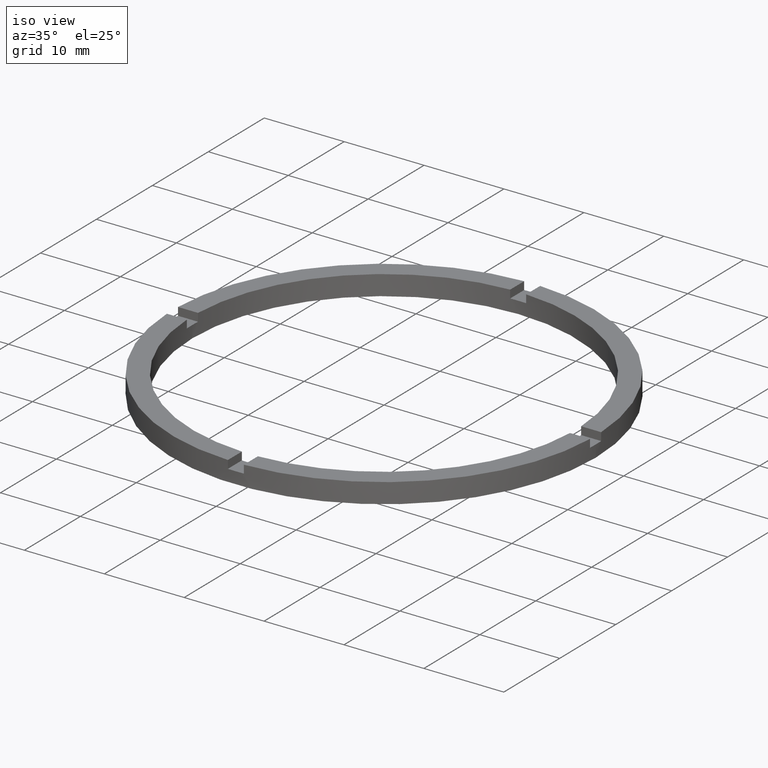
[diagram: clean part render]
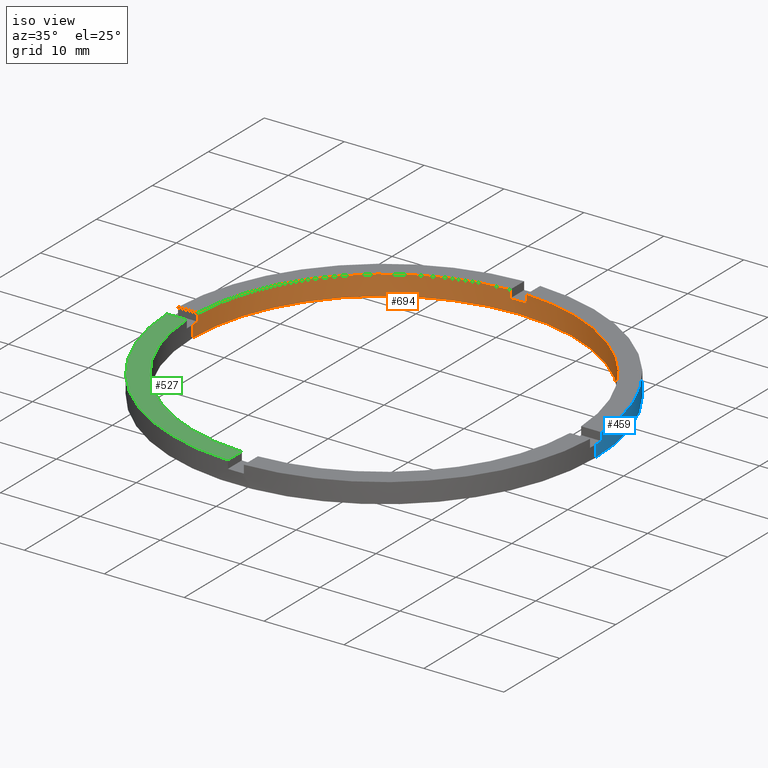
[diagram: same view with three faces highlighted in distinct colors, each labeled with its STEP entity id]
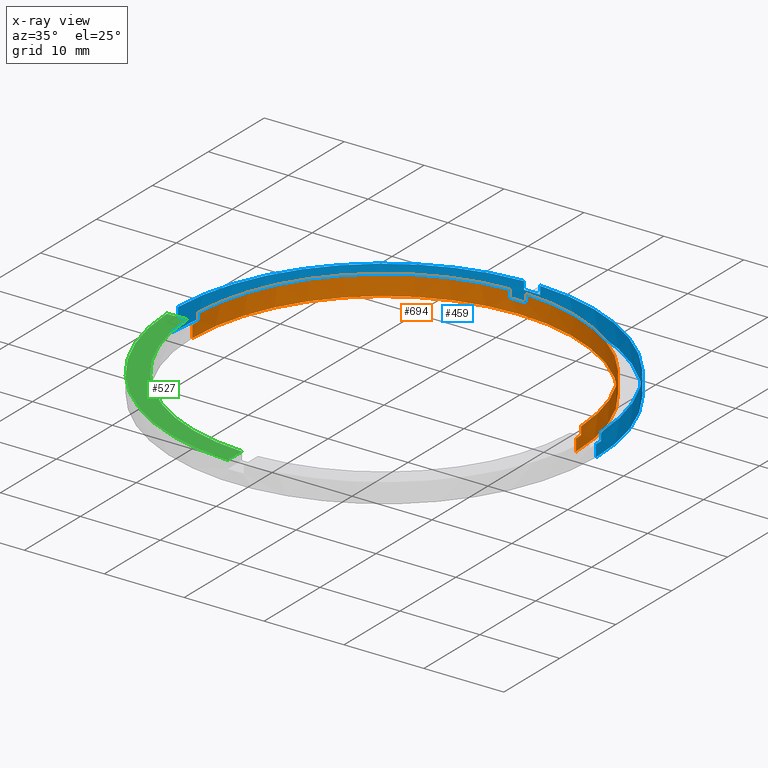
[diagram: x-ray of the same camera — body ghosted, the three highlighted faces saturated]
A machine part, iso view with three faces highlighted in distinct colors.
The next image is the same camera in x-ray (body ghosted, the three faces saturated) — at least one of them is partly hidden behind the body in this view.
Their STEP definitions:

[orange] entity #694 — the highlighted cylindrical surface (partial cylindrical patch) has radius 24 mm, axis along (-0, -0, -1).
#4 = CARTESIAN_POINT ( 'NONE',  ( 0.000000000000000000, 0.000000000000000000, 2.500000000000000000 ) ) ;
#12 = EDGE_CURVE ( 'NONE', #771, #374, #501, .T. ) ;
#13 = CARTESIAN_POINT ( 'NONE',  ( -24.00000000000000355, 0.000000000000000000, 1.500000000000000000 ) ) ;
#21 = CARTESIAN_POINT ( 'NONE',  ( -23.97915761656360445, 0.9999999999999740208, 1.500000000000000000 ) ) ;
#30 = DIRECTION ( 'NONE',  ( 0.000000000000000000, -0.000000000000000000, 1.000000000000000000 ) ) ;
#47 = ORIENTED_EDGE ( 'NONE', *, *, #536, .T. ) ;
#49 = ORIENTED_EDGE ( 'NONE', *, *, #751, .T. ) ;
#57 = EDGE_CURVE ( 'NONE', #250, #258, #764, .T. ) ;
#70 = CARTESIAN_POINT ( 'NONE',  ( 0.000000000000000000, 0.000000000000000000, 1.500000000000000000 ) ) ;
#99 = ORIENTED_EDGE ( 'NONE', *, *, #306, .T. ) ;
#110 = CARTESIAN_POINT ( 'NONE',  ( -24.00000000000000355, 0.000000000000000000, 2.500000000000000000 ) ) ;
#119 = ORIENTED_EDGE ( 'NONE', *, *, #173, .F. ) ;
#128 = VERTEX_POINT ( 'NONE', #638 ) ;
#132 = ORIENTED_EDGE ( 'NONE', *, *, #521, .F. ) ;
#142 = CARTESIAN_POINT ( 'NONE',  ( 0.000000000000000000, 0.000000000000000000, 0.000000000000000000 ) ) ;
#152 = EDGE_CURVE ( 'NONE', #250, #358, #200, .T. ) ;
#156 = EDGE_CURVE ( 'NONE', #370, #591, #457, .T. ) ;
#173 = EDGE_CURVE ( 'NONE', #771, #373, #704, .T. ) ;
#189 = DIRECTION ( 'NONE',  ( -1.000000000000000000, 0.000000000000000000, 0.000000000000000000 ) ) ;
#190 = LINE ( 'NONE', #205, #192 ) ;
#192 = VECTOR ( 'NONE', #262, 1000.000000000000000 ) ;
#197 = CARTESIAN_POINT ( 'NONE',  ( 0.000000000000000000, 0.000000000000000000, 2.500000000000000000 ) ) ;
#200 = CIRCLE ( 'NONE', #444, 24.00000000000000355 ) ;
#205 = CARTESIAN_POINT ( 'NONE',  ( 23.97915761656361155, 0.9999999999998427924, 2.500000000000000000 ) ) ;
#206 = DIRECTION ( 'NONE',  ( -0.000000000000000000, -0.000000000000000000, -1.000000000000000000 ) ) ;
#225 = AXIS2_PLACEMENT_3D ( 'NONE', #4, #509, #302 ) ;
#235 = EDGE_CURVE ( 'NONE', #369, #373, #695, .T. ) ;
#247 = VECTOR ( 'NONE', #206, 1000.000000000000000 ) ;
#250 = VERTEX_POINT ( 'NONE', #21 ) ;
#258 = VERTEX_POINT ( 'NONE', #397 ) ;
#262 = DIRECTION ( 'NONE',  ( -0.000000000000000000, -0.000000000000000000, -1.000000000000000000 ) ) ;
#266 = DIRECTION ( 'NONE',  ( 0.000000000000000000, 0.000000000000000000, 1.000000000000000000 ) ) ;
#267 = CARTESIAN_POINT ( 'NONE',  ( -1.000000000000026201, 23.97915761656360445, 2.500000000000000000 ) ) ;
#268 = EDGE_CURVE ( 'NONE', #369, #128, #190, .T. ) ;
#269 = CARTESIAN_POINT ( 'NONE',  ( 24.00000000000000355, 2.939152317953648289E-15, 2.500000000000000000 ) ) ;
#281 = AXIS2_PLACEMENT_3D ( 'NONE', #414, #474, #710 ) ;
#297 = DIRECTION ( 'NONE',  ( 0.000000000000000000, 0.000000000000000000, 1.000000000000000000 ) ) ;
#300 = CARTESIAN_POINT ( 'NONE',  ( 0.000000000000000000, 0.000000000000000000, 1.500000000000000000 ) ) ;
#301 = CARTESIAN_POINT ( 'NONE',  ( -1.000000000000026201, 23.97915761656360445, 1.500000000000000000 ) ) ;
#302 = DIRECTION ( 'NONE',  ( 1.000000000000000000, 0.000000000000000000, 0.000000000000000000 ) ) ;
#306 = EDGE_CURVE ( 'NONE', #370, #128, #720, .T. ) ;
#358 = VERTEX_POINT ( 'NONE', #13 ) ;
#362 = ORIENTED_EDGE ( 'NONE', *, *, #235, .T. ) ;
#369 = VERTEX_POINT ( 'NONE', #429 ) ;
#370 = VERTEX_POINT ( 'NONE', #508 ) ;
#373 = VERTEX_POINT ( 'NONE', #391 ) ;
#374 = VERTEX_POINT ( 'NONE', #301 ) ;
#380 = ORIENTED_EDGE ( 'NONE', *, *, #57, .F. ) ;
#381 = DIRECTION ( 'NONE',  ( 1.000000000000000000, 0.000000000000000000, 0.000000000000000000 ) ) ;
#389 = DIRECTION ( 'NONE',  ( 0.000000000000000000, -0.000000000000000000, 1.000000000000000000 ) ) ;
#391 = CARTESIAN_POINT ( 'NONE',  ( 0.9999999999999737987, 23.97915761656360445, 2.500000000000000000 ) ) ;
#394 = DIRECTION ( 'NONE',  ( 1.000000000000000000, 0.000000000000000000, 0.000000000000000000 ) ) ;
#397 = CARTESIAN_POINT ( 'NONE',  ( -23.97915761656360445, 0.9999999999999740208, 2.500000000000000000 ) ) ;
#406 = EDGE_CURVE ( 'NONE', #591, #588, #696, .T. ) ;
#414 = CARTESIAN_POINT ( 'NONE',  ( 0.000000000000000000, 0.000000000000000000, 2.500000000000000000 ) ) ;
#415 = AXIS2_PLACEMENT_3D ( 'NONE', #142, #297, #381 ) ;
#421 = DIRECTION ( 'NONE',  ( -0.000000000000000000, -0.000000000000000000, -1.000000000000000000 ) ) ;
#429 = CARTESIAN_POINT ( 'NONE',  ( 23.97915761656361155, 0.9999999999998427924, 2.500000000000000000 ) ) ;
#433 = CARTESIAN_POINT ( 'NONE',  ( -24.00000000000000355, 0.000000000000000000, 0.000000000000000000 ) ) ;
#440 = DIRECTION ( 'NONE',  ( 0.000000000000000000, 0.000000000000000000, 1.000000000000000000 ) ) ;
#444 = AXIS2_PLACEMENT_3D ( 'NONE', #70, #266, #394 ) ;
#457 = LINE ( 'NONE', #269, #703 ) ;
#465 = VECTOR ( 'NONE', #533, 1000.000000000000000 ) ;
#471 = CARTESIAN_POINT ( 'NONE',  ( 0.9999999999999737987, 23.97915761656360445, 2.500000000000000000 ) ) ;
#472 = VECTOR ( 'NONE', #563, 1000.000000000000000 ) ;
#474 = DIRECTION ( 'NONE',  ( 0.000000000000000000, 0.000000000000000000, 1.000000000000000000 ) ) ;
#493 = FACE_OUTER_BOUND ( 'NONE', #641, .T. ) ;
#494 = CARTESIAN_POINT ( 'NONE',  ( -23.97915761656360445, 0.9999999999999740208, 2.500000000000000000 ) ) ;
#501 = CIRCLE ( 'NONE', #765, 24.00000000000000355 ) ;
#508 = CARTESIAN_POINT ( 'NONE',  ( 24.00000000000000355, 2.939152317953648289E-15, 1.500000000000000000 ) ) ;
#509 = DIRECTION ( 'NONE',  ( 0.000000000000000000, 0.000000000000000000, 1.000000000000000000 ) ) ;
#512 = CARTESIAN_POINT ( 'NONE',  ( 24.00000000000000355, 2.939152317953648289E-15, 0.000000000000000000 ) ) ;
#521 = EDGE_CURVE ( 'NONE', #574, #374, #744, .T. ) ;
#525 = CARTESIAN_POINT ( 'NONE',  ( 0.000000000000000000, 0.000000000000000000, 1.500000000000000000 ) ) ;
#533 = DIRECTION ( 'NONE',  ( 0.000000000000000000, 0.000000000000000000, 1.000000000000000000 ) ) ;
#536 = EDGE_CURVE ( 'NONE', #358, #588, #755, .T. ) ;
#551 = DIRECTION ( 'NONE',  ( 1.000000000000000000, 0.000000000000000000, 0.000000000000000000 ) ) ;
#554 = CARTESIAN_POINT ( 'NONE',  ( 0.9999999999999737987, 23.97915761656360445, 1.500000000000000000 ) ) ;
#563 = DIRECTION ( 'NONE',  ( -0.000000000000000000, -0.000000000000000000, -1.000000000000000000 ) ) ;
#574 = VERTEX_POINT ( 'NONE', #267 ) ;
#578 = AXIS2_PLACEMENT_3D ( 'NONE', #525, #30, #763 ) ;
#588 = VERTEX_POINT ( 'NONE', #433 ) ;
#591 = VERTEX_POINT ( 'NONE', #512 ) ;
#594 = ORIENTED_EDGE ( 'NONE', *, *, #268, .F. ) ;
#613 = ORIENTED_EDGE ( 'NONE', *, *, #152, .T. ) ;
#624 = ORIENTED_EDGE ( 'NONE', *, *, #406, .F. ) ;
#638 = CARTESIAN_POINT ( 'NONE',  ( 23.97915761656361155, 0.9999999999998427924, 1.500000000000000000 ) ) ;
#641 = EDGE_LOOP ( 'NONE', ( #650, #99, #594, #362, #119, #643, #132, #49, #380, #613, #47, #624 ) ) ;
#643 = ORIENTED_EDGE ( 'NONE', *, *, #12, .T. ) ;
#650 = ORIENTED_EDGE ( 'NONE', *, *, #156, .F. ) ;
#655 = DIRECTION ( 'NONE',  ( -0.000000000000000000, -0.000000000000000000, -1.000000000000000000 ) ) ;
#661 = CARTESIAN_POINT ( 'NONE',  ( -1.000000000000026201, 23.97915761656360445, 2.500000000000000000 ) ) ;
#675 = AXIS2_PLACEMENT_3D ( 'NONE', #197, #421, #189 ) ;
#694 = ADVANCED_FACE ( 'NONE', ( #493 ), #754, .F. ) ;
#695 = CIRCLE ( 'NONE', #281, 24.00000000000000355 ) ;
#696 = CIRCLE ( 'NONE', #415, 24.00000000000000355 ) ;
#703 = VECTOR ( 'NONE', #655, 1000.000000000000000 ) ;
#704 = LINE ( 'NONE', #471, #465 ) ;
#710 = DIRECTION ( 'NONE',  ( 1.000000000000000000, 0.000000000000000000, 0.000000000000000000 ) ) ;
#716 = VECTOR ( 'NONE', #440, 1000.000000000000000 ) ;
#720 = CIRCLE ( 'NONE', #578, 24.00000000000000355 ) ;
#730 = CIRCLE ( 'NONE', #225, 24.00000000000000355 ) ;
#744 = LINE ( 'NONE', #661, #472 ) ;
#751 = EDGE_CURVE ( 'NONE', #574, #258, #730, .T. ) ;
#754 = CYLINDRICAL_SURFACE ( 'NONE', #675, 24.00000000000000355 ) ;
#755 = LINE ( 'NONE', #110, #247 ) ;
#763 = DIRECTION ( 'NONE',  ( 1.000000000000000000, 0.000000000000000000, 0.000000000000000000 ) ) ;
#764 = LINE ( 'NONE', #494, #716 ) ;
#765 = AXIS2_PLACEMENT_3D ( 'NONE', #300, #389, #551 ) ;
#771 = VERTEX_POINT ( 'NONE', #554 ) ;

[blue] entity #459 — the highlighted cylindrical surface (partial cylindrical patch) has radius 26.5 mm, axis along (-0, -0, -1).
#10 = EDGE_CURVE ( 'NONE', #644, #315, #759, .T. ) ;
#18 = CARTESIAN_POINT ( 'NONE',  ( 26.48112535373072873, 0.9999999999998427924, 1.500000000000000000 ) ) ;
#22 = DIRECTION ( 'NONE',  ( 0.000000000000000000, -0.000000000000000000, 1.000000000000000000 ) ) ;
#33 = EDGE_CURVE ( 'NONE', #766, #254, #251, .T. ) ;
#36 = ORIENTED_EDGE ( 'NONE', *, *, #174, .T. ) ;
#37 = ORIENTED_EDGE ( 'NONE', *, *, #427, .T. ) ;
#52 = CARTESIAN_POINT ( 'NONE',  ( 0.000000000000000000, 0.000000000000000000, 1.500000000000000000 ) ) ;
#54 = ORIENTED_EDGE ( 'NONE', *, *, #10, .F. ) ;
#90 = CARTESIAN_POINT ( 'NONE',  ( 26.48112535373072873, 0.9999999999998427924, 2.500000000000000000 ) ) ;
#95 = DIRECTION ( 'NONE',  ( 0.000000000000000000, 0.000000000000000000, 1.000000000000000000 ) ) ;
#103 = VERTEX_POINT ( 'NONE', #18 ) ;
#112 = ORIENTED_EDGE ( 'NONE', *, *, #757, .F. ) ;
#113 = CARTESIAN_POINT ( 'NONE',  ( -26.50000000000000355, 0.000000000000000000, 1.500000000000000000 ) ) ;
#115 = ORIENTED_EDGE ( 'NONE', *, *, #718, .T. ) ;
#129 = VERTEX_POINT ( 'NONE', #506 ) ;
#139 = DIRECTION ( 'NONE',  ( 1.000000000000000000, 0.000000000000000000, 0.000000000000000000 ) ) ;
#141 = AXIS2_PLACEMENT_3D ( 'NONE', #569, #699, #344 ) ;
#145 = DIRECTION ( 'NONE',  ( 0.000000000000000000, -0.000000000000000000, 1.000000000000000000 ) ) ;
#150 = EDGE_CURVE ( 'NONE', #342, #103, #441, .T. ) ;
#153 = CARTESIAN_POINT ( 'NONE',  ( -26.50000000000000355, 0.000000000000000000, 2.500000000000000000 ) ) ;
#155 = DIRECTION ( 'NONE',  ( -0.000000000000000000, -0.000000000000000000, -1.000000000000000000 ) ) ;
#164 = CARTESIAN_POINT ( 'NONE',  ( 0.9999999999999737987, 26.48112535373072518, 2.500000000000000000 ) ) ;
#166 = CARTESIAN_POINT ( 'NONE',  ( 26.48112535373072873, 0.9999999999998427924, 2.500000000000000000 ) ) ;
#172 = VECTOR ( 'NONE', #95, 1000.000000000000000 ) ;
#174 = EDGE_CURVE ( 'NONE', #337, #347, #187, .T. ) ;
#187 = CIRCLE ( 'NONE', #141, 26.50000000000000355 ) ;
#188 = LINE ( 'NONE', #561, #453 ) ;
#202 = CARTESIAN_POINT ( 'NONE',  ( 0.000000000000000000, 0.000000000000000000, 1.500000000000000000 ) ) ;
#211 = VECTOR ( 'NONE', #259, 1000.000000000000000 ) ;
#216 = DIRECTION ( 'NONE',  ( 1.000000000000000000, 0.000000000000000000, 0.000000000000000000 ) ) ;
#227 = LINE ( 'NONE', #431, #211 ) ;
#229 = ORIENTED_EDGE ( 'NONE', *, *, #535, .T. ) ;
#251 = CIRCLE ( 'NONE', #293, 26.50000000000000355 ) ;
#254 = VERTEX_POINT ( 'NONE', #642 ) ;
#259 = DIRECTION ( 'NONE',  ( -0.000000000000000000, -0.000000000000000000, -1.000000000000000000 ) ) ;
#272 = DIRECTION ( 'NONE',  ( 0.000000000000000000, 0.000000000000000000, 1.000000000000000000 ) ) ;
#273 = DIRECTION ( 'NONE',  ( 1.000000000000000000, 0.000000000000000000, 0.000000000000000000 ) ) ;
#277 = CARTESIAN_POINT ( 'NONE',  ( -1.000000000000026201, 26.48112535373072163, 1.500000000000000000 ) ) ;
#293 = AXIS2_PLACEMENT_3D ( 'NONE', #422, #399, #649 ) ;
#308 = ORIENTED_EDGE ( 'NONE', *, *, #612, .F. ) ;
#311 = DIRECTION ( 'NONE',  ( 0.000000000000000000, 0.000000000000000000, 1.000000000000000000 ) ) ;
#314 = CARTESIAN_POINT ( 'NONE',  ( 0.000000000000000000, 0.000000000000000000, 2.500000000000000000 ) ) ;
#315 = VERTEX_POINT ( 'NONE', #113 ) ;
#333 = AXIS2_PLACEMENT_3D ( 'NONE', #314, #155, #400 ) ;
#337 = VERTEX_POINT ( 'NONE', #408 ) ;
#342 = VERTEX_POINT ( 'NONE', #548 ) ;
#344 = DIRECTION ( 'NONE',  ( 1.000000000000000000, 0.000000000000000000, 0.000000000000000000 ) ) ;
#347 = VERTEX_POINT ( 'NONE', #740 ) ;
#371 = ORIENTED_EDGE ( 'NONE', *, *, #33, .F. ) ;
#399 = DIRECTION ( 'NONE',  ( 0.000000000000000000, 0.000000000000000000, 1.000000000000000000 ) ) ;
#400 = DIRECTION ( 'NONE',  ( -1.000000000000000000, 0.000000000000000000, 0.000000000000000000 ) ) ;
#408 = CARTESIAN_POINT ( 'NONE',  ( 26.50000000000000355, 3.245314017740486554E-15, 0.000000000000000000 ) ) ;
#422 = CARTESIAN_POINT ( 'NONE',  ( 0.000000000000000000, 0.000000000000000000, 2.500000000000000000 ) ) ;
#427 = EDGE_CURVE ( 'NONE', #644, #254, #438, .T. ) ;
#431 = CARTESIAN_POINT ( 'NONE',  ( 26.50000000000000355, 3.245314017740486554E-15, 2.500000000000000000 ) ) ;
#438 = LINE ( 'NONE', #454, #172 ) ;
#439 = CARTESIAN_POINT ( 'NONE',  ( -1.000000000000026201, 26.48112535373072163, 2.500000000000000000 ) ) ;
#441 = CIRCLE ( 'NONE', #670, 26.50000000000000355 ) ;
#447 = CYLINDRICAL_SURFACE ( 'NONE', #333, 26.50000000000000355 ) ;
#453 = VECTOR ( 'NONE', #272, 1000.000000000000000 ) ;
#454 = CARTESIAN_POINT ( 'NONE',  ( -26.48112535373072518, 0.9999999999999735767, 2.500000000000000000 ) ) ;
#459 = ADVANCED_FACE ( 'NONE', ( #706 ), #447, .T. ) ;
#467 = CIRCLE ( 'NONE', #779, 26.50000000000000355 ) ;
#476 = EDGE_CURVE ( 'NONE', #129, #553, #188, .T. ) ;
#478 = AXIS2_PLACEMENT_3D ( 'NONE', #52, #311, #139 ) ;
#480 = VECTOR ( 'NONE', #658, 1000.000000000000000 ) ;
#481 = LINE ( 'NONE', #153, #734 ) ;
#486 = CIRCLE ( 'NONE', #526, 26.50000000000000355 ) ;
#506 = CARTESIAN_POINT ( 'NONE',  ( 0.9999999999999737987, 26.48112535373072518, 1.500000000000000000 ) ) ;
#517 = DIRECTION ( 'NONE',  ( 1.000000000000000000, 0.000000000000000000, 0.000000000000000000 ) ) ;
#526 = AXIS2_PLACEMENT_3D ( 'NONE', #749, #22, #517 ) ;
#535 = EDGE_CURVE ( 'NONE', #656, #103, #729, .T. ) ;
#548 = CARTESIAN_POINT ( 'NONE',  ( 26.50000000000000355, 3.245314017740486554E-15, 1.500000000000000000 ) ) ;
#553 = VERTEX_POINT ( 'NONE', #164 ) ;
#561 = CARTESIAN_POINT ( 'NONE',  ( 0.9999999999999737987, 26.48112535373072518, 2.500000000000000000 ) ) ;
#569 = CARTESIAN_POINT ( 'NONE',  ( 0.000000000000000000, 0.000000000000000000, 0.000000000000000000 ) ) ;
#600 = EDGE_CURVE ( 'NONE', #766, #617, #732, .T. ) ;
#603 = EDGE_CURVE ( 'NONE', #129, #617, #486, .T. ) ;
#610 = ORIENTED_EDGE ( 'NONE', *, *, #476, .T. ) ;
#612 = EDGE_CURVE ( 'NONE', #656, #553, #467, .T. ) ;
#617 = VERTEX_POINT ( 'NONE', #277 ) ;
#618 = ORIENTED_EDGE ( 'NONE', *, *, #600, .T. ) ;
#620 = ORIENTED_EDGE ( 'NONE', *, *, #603, .F. ) ;
#642 = CARTESIAN_POINT ( 'NONE',  ( -26.48112535373072518, 0.9999999999999735767, 2.500000000000000000 ) ) ;
#644 = VERTEX_POINT ( 'NONE', #697 ) ;
#645 = EDGE_LOOP ( 'NONE', ( #783, #115, #36, #112, #54, #37, #371, #618, #620, #610, #308, #229 ) ) ;
#649 = DIRECTION ( 'NONE',  ( 1.000000000000000000, 0.000000000000000000, 0.000000000000000000 ) ) ;
#656 = VERTEX_POINT ( 'NONE', #166 ) ;
#658 = DIRECTION ( 'NONE',  ( -0.000000000000000000, -0.000000000000000000, -1.000000000000000000 ) ) ;
#670 = AXIS2_PLACEMENT_3D ( 'NONE', #202, #145, #273 ) ;
#680 = CARTESIAN_POINT ( 'NONE',  ( -1.000000000000026201, 26.48112535373072163, 2.500000000000000000 ) ) ;
#682 = DIRECTION ( 'NONE',  ( -0.000000000000000000, -0.000000000000000000, -1.000000000000000000 ) ) ;
#685 = CARTESIAN_POINT ( 'NONE',  ( 0.000000000000000000, 0.000000000000000000, 2.500000000000000000 ) ) ;
#697 = CARTESIAN_POINT ( 'NONE',  ( -26.48112535373072518, 0.9999999999999735767, 1.500000000000000000 ) ) ;
#699 = DIRECTION ( 'NONE',  ( 0.000000000000000000, 0.000000000000000000, 1.000000000000000000 ) ) ;
#706 = FACE_OUTER_BOUND ( 'NONE', #645, .T. ) ;
#718 = EDGE_CURVE ( 'NONE', #342, #337, #227, .T. ) ;
#722 = DIRECTION ( 'NONE',  ( -0.000000000000000000, -0.000000000000000000, -1.000000000000000000 ) ) ;
#729 = LINE ( 'NONE', #90, #480 ) ;
#732 = LINE ( 'NONE', #439, #758 ) ;
#734 = VECTOR ( 'NONE', #722, 1000.000000000000000 ) ;
#740 = CARTESIAN_POINT ( 'NONE',  ( -26.50000000000000355, 0.000000000000000000, 0.000000000000000000 ) ) ;
#749 = CARTESIAN_POINT ( 'NONE',  ( 0.000000000000000000, 0.000000000000000000, 1.500000000000000000 ) ) ;
#756 = DIRECTION ( 'NONE',  ( 0.000000000000000000, 0.000000000000000000, 1.000000000000000000 ) ) ;
#757 = EDGE_CURVE ( 'NONE', #315, #347, #481, .T. ) ;
#758 = VECTOR ( 'NONE', #682, 1000.000000000000000 ) ;
#759 = CIRCLE ( 'NONE', #478, 26.50000000000000355 ) ;
#766 = VERTEX_POINT ( 'NONE', #680 ) ;
#779 = AXIS2_PLACEMENT_3D ( 'NONE', #685, #756, #216 ) ;
#783 = ORIENTED_EDGE ( 'NONE', *, *, #150, .F. ) ;

[green] entity #527 — the highlighted planar face has unit normal (0, 0, 1).
#11 = CARTESIAN_POINT ( 'NONE',  ( -1.000000000000160316, -26.48112535373071807, 2.500000000000000000 ) ) ;
#34 = DIRECTION ( 'NONE',  ( 1.000000000000000000, 0.000000000000000000, -0.000000000000000000 ) ) ;
#72 = EDGE_CURVE ( 'NONE', #598, #116, #170, .T. ) ;
#76 = CARTESIAN_POINT ( 'NONE',  ( 0.000000000000000000, 0.000000000000000000, 2.500000000000000000 ) ) ;
#80 = VERTEX_POINT ( 'NONE', #11 ) ;
#100 = PLANE ( 'NONE',  #278 ) ;
#109 = ORIENTED_EDGE ( 'NONE', *, *, #537, .F. ) ;
#116 = VERTEX_POINT ( 'NONE', #522 ) ;
#117 = EDGE_LOOP ( 'NONE', ( #368, #350, #109, #341 ) ) ;
#137 = CARTESIAN_POINT ( 'NONE',  ( -1.000000000000161648, -16.50000000000018119, 2.500000000000000000 ) ) ;
#163 = CARTESIAN_POINT ( 'NONE',  ( -26.48112535373072163, -1.000000000000026423, 2.500000000000000000 ) ) ;
#170 = CIRCLE ( 'NONE', #679, 24.00000000000000355 ) ;
#182 = LINE ( 'NONE', #137, #185 ) ;
#185 = VECTOR ( 'NONE', #748, 1000.000000000000000 ) ;
#214 = CIRCLE ( 'NONE', #733, 26.50000000000000355 ) ;
#278 = AXIS2_PLACEMENT_3D ( 'NONE', #425, #331, #34 ) ;
#291 = EDGE_CURVE ( 'NONE', #116, #80, #182, .T. ) ;
#321 = VERTEX_POINT ( 'NONE', #163 ) ;
#331 = DIRECTION ( 'NONE',  ( 0.000000000000000000, 0.000000000000000000, 1.000000000000000000 ) ) ;
#341 = ORIENTED_EDGE ( 'NONE', *, *, #542, .T. ) ;
#343 = DIRECTION ( 'NONE',  ( 1.000000000000000000, 0.000000000000000000, 0.000000000000000000 ) ) ;
#350 = ORIENTED_EDGE ( 'NONE', *, *, #72, .F. ) ;
#368 = ORIENTED_EDGE ( 'NONE', *, *, #291, .F. ) ;
#393 = CARTESIAN_POINT ( 'NONE',  ( -16.50000000000018474, -1.000000000000024647, 2.500000000000000000 ) ) ;
#425 = CARTESIAN_POINT ( 'NONE',  ( 0.000000000000000000, 0.000000000000000000, 2.500000000000000000 ) ) ;
#456 = DIRECTION ( 'NONE',  ( 1.000000000000000000, 1.734723475976806848E-16, -0.000000000000000000 ) ) ;
#483 = LINE ( 'NONE', #393, #727 ) ;
#522 = CARTESIAN_POINT ( 'NONE',  ( -1.000000000000160760, -23.97915761656359734, 2.500000000000000000 ) ) ;
#527 = ADVANCED_FACE ( 'NONE', ( #726 ), #100, .T. ) ;
#537 = EDGE_CURVE ( 'NONE', #321, #598, #483, .T. ) ;
#542 = EDGE_CURVE ( 'NONE', #321, #80, #214, .T. ) ;
#555 = CARTESIAN_POINT ( 'NONE',  ( -23.97915761656360445, -1.000000000000025979, 2.500000000000000000 ) ) ;
#598 = VERTEX_POINT ( 'NONE', #555 ) ;
#621 = CARTESIAN_POINT ( 'NONE',  ( 0.000000000000000000, 0.000000000000000000, 2.500000000000000000 ) ) ;
#674 = DIRECTION ( 'NONE',  ( 0.000000000000000000, 0.000000000000000000, 1.000000000000000000 ) ) ;
#679 = AXIS2_PLACEMENT_3D ( 'NONE', #621, #674, #736 ) ;
#689 = DIRECTION ( 'NONE',  ( 0.000000000000000000, 0.000000000000000000, 1.000000000000000000 ) ) ;
#726 = FACE_OUTER_BOUND ( 'NONE', #117, .T. ) ;
#727 = VECTOR ( 'NONE', #456, 1000.000000000000000 ) ;
#733 = AXIS2_PLACEMENT_3D ( 'NONE', #76, #689, #343 ) ;
#736 = DIRECTION ( 'NONE',  ( 1.000000000000000000, 0.000000000000000000, 0.000000000000000000 ) ) ;
#748 = DIRECTION ( 'NONE',  ( 1.301042606982605074E-16, -1.000000000000000000, 0.000000000000000000 ) ) ;